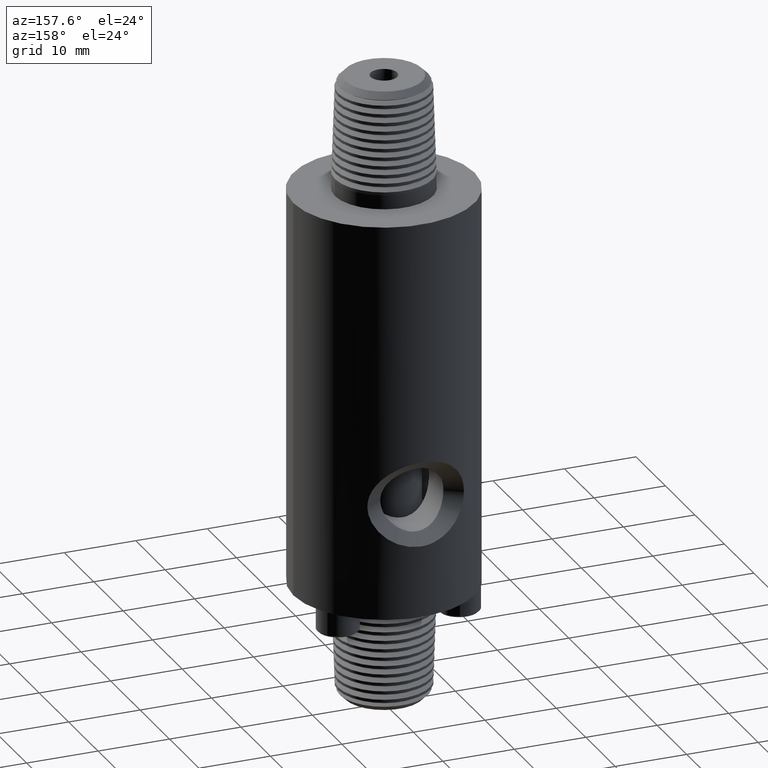
[diagram: clean part render]
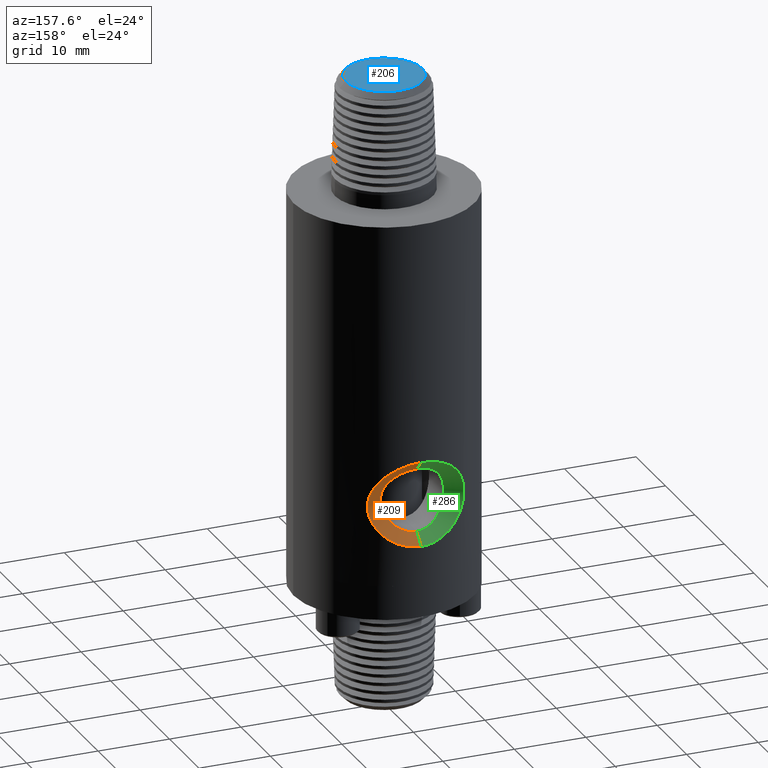
[diagram: same view with three faces highlighted in distinct colors, each labeled with its STEP entity id]
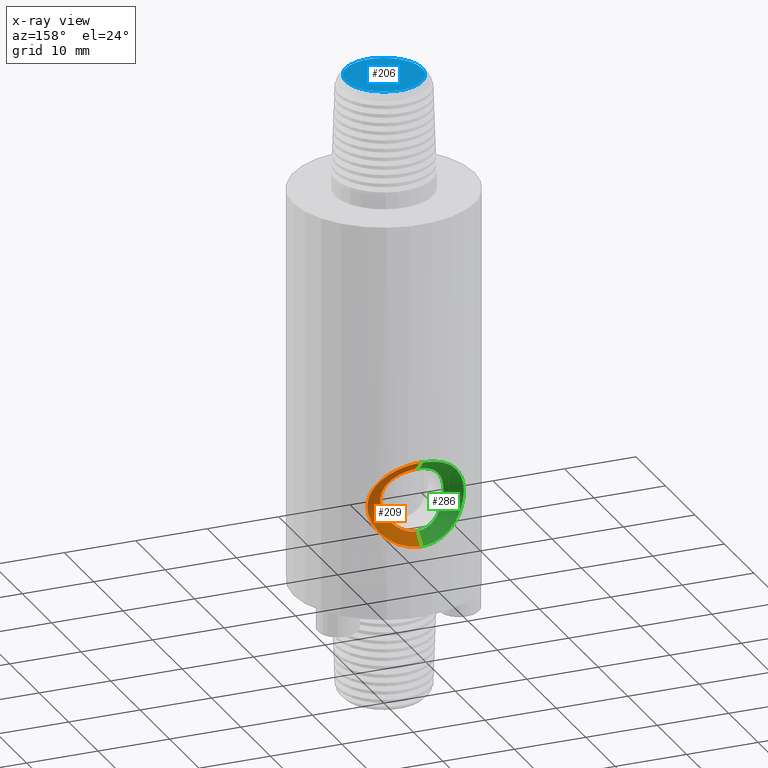
[diagram: x-ray of the same camera — body ghosted, the three highlighted faces saturated]
A machine part, auxiliary view with three faces highlighted in distinct colors.
The next image is the same camera in x-ray (body ghosted, the three faces saturated) — at least one of them is partly hidden behind the body in this view.
Their STEP definitions:

[orange] entity #209 — the highlighted face is a freeform B-spline surface patch.
#116 = EDGE_LOOP ( 'NONE', ( #3025, #3028, #2992, #3001 ) ) ;
#187 = B_SPLINE_SURFACE_WITH_KNOTS ( 'NONE', 1, 3, ( 
 ( #3581, #3437, #3426, #3492, #3462, #3568, #3544, #3441, #3424, #3459, #3553, #3464, #3577, #3572, #3686, #3560, #3498, #3458, #3576, #3448 ),
 ( #3574, #3423, #3493, #3463, #3559, #3420, #3451, #3567, #3427, #3432, #3535, #3536, #3541, #3561, #3563, #3584, #3583, #3612, #3585, #3610 ) ),
 .UNSPECIFIED., .F., .F., .F.,
 ( 2, 2 ),
 ( 4, 2, 2, 2, 2, 2, 2, 2, 2, 4 ),
 ( 0.0000000000000000000, 1.000000000000000000 ),
 ( 0.002595630559462776300, 0.007313984871202448700, 0.01203233918294212100, 0.01675069349468179300, 0.01910987065055162700, 0.02146904780642146600, 0.02618740211816113900, 0.03090575642990080900, 0.03562411074164048600, 0.04034246505338015500 ),
 .UNSPECIFIED. ) ;
#209 = ADVANCED_FACE ( 'NONE', ( #3161 ), #187, .T. ) ;
#454 = CARTESIAN_POINT ( 'NONE',  ( 7.861967865281961300E-017, 0.4999999999999998300, 0.2060000074137189300 ) ) ;
#458 = CARTESIAN_POINT ( 'NONE',  ( -1.370078323710908000E-011, 0.4399999686394475100, 0.6139999942154332800 ) ) ;
#607 = CARTESIAN_POINT ( 'NONE',  ( 1.710775810573975400E-017, 0.4400000029566741300, 0.2659999999999999000 ) ) ;
#610 = CARTESIAN_POINT ( 'NONE',  ( 7.861967865281961300E-017, 0.4999999999999998300, 0.2060000074137189300 ) ) ;
#925 = CARTESIAN_POINT ( 'NONE',  ( 1.710775810573975400E-017, 0.4400000029566741300, 0.2659999999999999000 ) ) ;
#992 = CARTESIAN_POINT ( 'NONE',  ( 0.0001188004436111807600, 0.4999999858864542200, 0.6739999692325832100 ) ) ;
#1112 = EDGE_CURVE ( 'NONE', #3566, #3569, #4060, .T. ) ;
#1925 = CARTESIAN_POINT ( 'NONE',  ( 0.2114050959143063400, 0.4531485166685652600, 0.5821689216734105000 ) ) ;
#1929 = CARTESIAN_POINT ( 'NONE',  ( 0.2164781942454169800, 0.4507380952197422300, 0.5761075924830545400 ) ) ;
#1930 = CARTESIAN_POINT ( 'NONE',  ( 0.2306227884466341100, 0.4437608429248929300, 0.5573349366310648100 ) ) ;
#1931 = CARTESIAN_POINT ( 'NONE',  ( 0.2386204605849166500, 0.4394527763509102300, 0.5440349416885111900 ) ) ;
#1932 = CARTESIAN_POINT ( 'NONE',  ( 0.2456999684463052300, 0.4354672822286724800, 0.5290697503307441000 ) ) ;
#1933 = CARTESIAN_POINT ( 'NONE',  ( 0.2461548581947587700, 0.4352103217828114400, 0.5280923525201491900 ) ) ;
#1934 = CARTESIAN_POINT ( 'NONE',  ( 0.1946402952732966800, 0.4606072482752350300, 0.5996228691202806200 ) ) ;
#1941 = CARTESIAN_POINT ( 'NONE',  ( 0.2470043734977528900, 0.4347287405637710900, 0.5262334513282230800 ) ) ;
#1945 = CARTESIAN_POINT ( 'NONE',  ( 0.02233971578531644000, 0.4995201228825381600, 0.6732243190214826100 ) ) ;
#1947 = CARTESIAN_POINT ( 'NONE',  ( 0.2482568629340760600, 0.4340162505569389900, 0.5234439015329885900 ) ) ;
#1966 = CARTESIAN_POINT ( 'NONE',  ( 0.0001188004436111807600, 0.4999999858864542200, 0.6739999692325832100 ) ) ;
#1967 = CARTESIAN_POINT ( 'NONE',  ( 0.004505466994846334300, 0.4999989436105605800, 0.6739985081220000200 ) ) ;
#1968 = CARTESIAN_POINT ( 'NONE',  ( 0.1056121140500643200, 0.4887233513263478700, 0.6547583968778309900 ) ) ;
#1969 = CARTESIAN_POINT ( 'NONE',  ( 0.1075511648794991200, 0.4882999628986279800, 0.6540101122832995300 ) ) ;
#1970 = CARTESIAN_POINT ( 'NONE',  ( 0.08707422433191705500, 0.4926477204524161700, 0.6616789287939359700 ) ) ;
#1971 = CARTESIAN_POINT ( 'NONE',  ( 0.04426237990662981700, 0.4981126632911942500, 0.6709122622113411500 ) ) ;
#1972 = CARTESIAN_POINT ( 'NONE',  ( 0.07016333050069020700, 0.4953570848158253500, 0.6662941061203223600 ) ) ;
#1973 = CARTESIAN_POINT ( 'NONE',  ( 0.1115057892226483700, 0.4874121108503286500, 0.6524361333928050400 ) ) ;
#1974 = CARTESIAN_POINT ( 'NONE',  ( 0.1630301831827427300, 0.4729070372037225700, 0.6255013312362313100 ) ) ;
#1975 = CARTESIAN_POINT ( 'NONE',  ( 0.1762337542379308600, 0.4680995521235255000, 0.6158762990975049600 ) ) ;
#1976 = CARTESIAN_POINT ( 'NONE',  ( 0.1417951927335112400, 0.4795300824077846600, 0.6381229976751864300 ) ) ;
#1977 = CARTESIAN_POINT ( 'NONE',  ( 0.1173934858623312700, 0.4860523823420368500, 0.6500184187517767900 ) ) ;
#1978 = CARTESIAN_POINT ( 'NONE',  ( 0.1231480475046630900, 0.4846130482349390600, 0.6474304651948926700 ) ) ;
#1979 = CARTESIAN_POINT ( 'NONE',  ( 0.1344789712689341600, 0.4816392828471641200, 0.6420275728599822400 ) ) ;
#1980 = CARTESIAN_POINT ( 'NONE',  ( 0.2591854956307746400, 0.4275825997747653200, 0.4925995188085480800 ) ) ;
#1981 = CARTESIAN_POINT ( 'NONE',  ( 0.2570396991447515000, 0.4288819107584712100, 0.5001054066738173100 ) ) ;
#1982 = CARTESIAN_POINT ( 'NONE',  ( 0.2531444174424368200, 0.4311846228656521800, 0.5113259022366861700 ) ) ;
#1983 = CARTESIAN_POINT ( 'NONE',  ( 0.2517331588615065500, 0.4320110218271310300, 0.5150596780518031900 ) ) ;
#1984 = CARTESIAN_POINT ( 'NONE',  ( 0.2494442946050135200, 0.4333339594950248500, 0.5206507577157198900 ) ) ;
#1989 = CARTESIAN_POINT ( 'NONE',  ( 0.2643044589655395000, 0.4244515944993062000, 0.4700051827426701700 ) ) ;
#1990 = CARTESIAN_POINT ( 'NONE',  ( 0.009045577915127344500, 0.4999378779955268600, 0.6739009650555110000 ) ) ;
#1991 = CARTESIAN_POINT ( 'NONE',  ( 0.2657976542744095400, 0.4234992611056245200, 0.4090380101796735600 ) ) ;
#1992 = CARTESIAN_POINT ( 'NONE',  ( 0.2659641289336757700, 0.4233947170362994900, 0.4548400620719913500 ) ) ;
#1993 = CARTESIAN_POINT ( 'NONE',  ( 0.2444509178103636000, 0.4361696964826490300, 0.3484838285719007400 ) ) ;
#1994 = CARTESIAN_POINT ( 'NONE',  ( 0.2589894055019924500, 0.4280022947221213100, 0.3789535431959533100 ) ) ;
#1995 = CARTESIAN_POINT ( 'NONE',  ( 0.2440502549255473300, 0.4363939890886630600, 0.3476579841534753200 ) ) ;
#1996 = CARTESIAN_POINT ( 'NONE',  ( 0.2298384649808407300, 0.4440663627461337600, 0.3223433323743609100 ) ) ;
#1997 = CARTESIAN_POINT ( 'NONE',  ( 0.2254792264010970500, 0.4463033936512282300, 0.3159173873360290300 ) ) ;
#1998 = CARTESIAN_POINT ( 'NONE',  ( 0.2358639598285274000, 0.4408779378476985800, 0.3322736872310991200 ) ) ;
#1999 = CARTESIAN_POINT ( 'NONE',  ( 0.2431934889409710400, 0.4368720265462854900, 0.3459179224650736900 ) ) ;
#2000 = CARTESIAN_POINT ( 'NONE',  ( 0.2418927751409189800, 0.4375952868128377700, 0.3433169373480725000 ) ) ;
#2001 = CARTESIAN_POINT ( 'NONE',  ( 0.2387483586160915300, 0.4393253925427123600, 0.3373117239842783300 ) ) ;
#2002 = CARTESIAN_POINT ( 'NONE',  ( 0.06072341538884151700, 0.4963740993900038200, 0.2121117072582839600 ) ) ;
#2003 = CARTESIAN_POINT ( 'NONE',  ( 0.06925462655932877700, 0.4952546720374521600, 0.2140282765530974700 ) ) ;
#2004 = CARTESIAN_POINT ( 'NONE',  ( 0.08194894190794120600, 0.4932572546743412800, 0.2174797845915647000 ) ) ;
#2005 = CARTESIAN_POINT ( 'NONE',  ( 0.08827048867817517700, 0.4921789880900768700, 0.2193497021348601300 ) ) ;
#2006 = CARTESIAN_POINT ( 'NONE',  ( 0.09455075168059991200, 0.4909833879405051100, 0.2214358649642481100 ) ) ;
#2007 = CARTESIAN_POINT ( 'NONE',  ( 0.09872811010601595400, 0.4901604759176297300, 0.2228746946918607500 ) ) ;
#2008 = CARTESIAN_POINT ( 'NONE',  ( 0.1008606662920816100, 0.4897258732266774900, 0.2236360843692356000 ) ) ;
#2009 = CARTESIAN_POINT ( 'NONE',  ( 0.1191344684589592400, 0.4858832090389054200, 0.2303817806796531800 ) ) ;
#2010 = CARTESIAN_POINT ( 'NONE',  ( 0.1343605972465631300, 0.4818386369391313700, 0.2375666766795545000 ) ) ;
#2011 = CARTESIAN_POINT ( 'NONE',  ( 0.1556642948145611800, 0.4752093621287765700, 0.2501271029320351600 ) ) ;
#2012 = CARTESIAN_POINT ( 'NONE',  ( 0.1625102488739811600, 0.4729053848976040900, 0.2546110920582999600 ) ) ;
#2013 = CARTESIAN_POINT ( 'NONE',  ( 0.1723999744174942700, 0.4693511689922651400, 0.2617828463108547400 ) ) ;
#2014 = CARTESIAN_POINT ( 'NONE',  ( 0.1756333783762008000, 0.4681500229099922500, 0.2642477261555656900 ) ) ;
#2015 = CARTESIAN_POINT ( 'NONE',  ( 0.1819747869932658300, 0.4657217027895730300, 0.2693260760327067500 ) ) ;
#2016 = CARTESIAN_POINT ( 'NONE',  ( 0.1850380538937632100, 0.4645126970737011900, 0.2719000675043291600 ) ) ;
#2017 = CARTESIAN_POINT ( 'NONE',  ( 0.2004911022886522700, 0.4582372224150807500, 0.2855362859398169500 ) ) ;
#2018 = CARTESIAN_POINT ( 'NONE',  ( 0.2113378054144225700, 0.4532623245922580700, 0.2972224268195162200 ) ) ;
#2019 = CARTESIAN_POINT ( 'NONE',  ( 0.03495677041698800500, 0.4990754883671486000, 0.2075153075663376800 ) ) ;
#2020 = CARTESIAN_POINT ( 'NONE',  ( 7.861967865281961300E-017, 0.4999999999999998300, 0.2060000074137189300 ) ) ;
#2023 = CARTESIAN_POINT ( 'NONE',  ( 0.01754773434459426200, 0.4999999999999999400, 0.2059887853616989300 ) ) ;
#2025 = CARTESIAN_POINT ( 'NONE',  ( 0.03553989809908891100, 0.4988131713446685700, 0.6720675459252539700 ) ) ;
#2070 = CARTESIAN_POINT ( 'NONE',  ( 0.01792026243979660100, 0.4996984776128277100, 0.6735138846411187200 ) ) ;
#2401 = CARTESIAN_POINT ( 'NONE',  ( 0.2005172322842165000, 0.4580704446856789200, 0.5938991345335100600 ) ) ;
#2491 = CARTESIAN_POINT ( 'NONE',  ( 0.0001188004436111807600, 0.4999999858864542200, 0.6739999692325832100 ) ) ;
#2512 = CARTESIAN_POINT ( 'NONE',  ( -1.370078323710908000E-011, 0.4399999686394475100, 0.6139999942154332800 ) ) ;
#2992 = ORIENTED_EDGE ( 'NONE', *, *, #3332, .T. ) ;
#3001 = ORIENTED_EDGE ( 'NONE', *, *, #4714, .F. ) ;
#3025 = ORIENTED_EDGE ( 'NONE', *, *, #3239, .F. ) ;
#3028 = ORIENTED_EDGE ( 'NONE', *, *, #1112, .F. ) ;
#3161 = FACE_OUTER_BOUND ( 'NONE', #116, .T. ) ;
#3239 = EDGE_CURVE ( 'NONE', #3569, #3562, #4065, .T. ) ;
#3332 = EDGE_CURVE ( 'NONE', #3566, #3557, #4068, .T. ) ;
#3420 = CARTESIAN_POINT ( 'NONE',  ( 0.1741446520897110600, 0.3725017330058080200, 0.4864800158361342100 ) ) ;
#3423 = CARTESIAN_POINT ( 'NONE',  ( 0.04669563596927973900, 0.4400263758945630000, 0.2659592936512062400 ) ) ;
#3424 = CARTESIAN_POINT ( 'NONE',  ( 0.1357001428646545100, 0.4823293647699921100, 0.6435262907337475600 ) ) ;
#3426 = CARTESIAN_POINT ( 'NONE',  ( 0.1401747630284165000, 0.4830527812779797400, 0.2322072450271270300 ) ) ;
#3427 = CARTESIAN_POINT ( 'NONE',  ( 0.08879661566143552700, 0.4244498421508479100, 0.5913400646128711400 ) ) ;
#3432 = CARTESIAN_POINT ( 'NONE',  ( 0.04672420669051694000, 0.4364706941533175200, 0.6091877917569779000 ) ) ;
#3437 = CARTESIAN_POINT ( 'NONE',  ( 0.07135976122571743900, 0.5000299687763121200, 0.2059452652551688200 ) ) ;
#3441 = CARTESIAN_POINT ( 'NONE',  ( 0.1644427963595130300, 0.4730009153213421400, 0.6263167090362628000 ) ) ;
#3448 = CARTESIAN_POINT ( 'NONE',  ( 6.829619984160658000E-017, 0.5000000000000000000, 0.2060000074137189300 ) ) ;
#3451 = CARTESIAN_POINT ( 'NONE',  ( 0.1548401656882108200, 0.3901147477528974000, 0.5310812715921682200 ) ) ;
#3458 = CARTESIAN_POINT ( 'NONE',  ( -0.1398473573537740200, 0.4831174970341236000, 0.2322128155125785000 ) ) ;
#3459 = CARTESIAN_POINT ( 'NONE',  ( 0.07140455418699694100, 0.4959894199107188800, 0.6675283990032708800 ) ) ;
#3462 = CARTESIAN_POINT ( 'NONE',  ( 0.2656871367437954000, 0.4235617079596839500, 0.3766383571199999300 ) ) ;
#3463 = CARTESIAN_POINT ( 'NONE',  ( 0.1544827475459004700, 0.3902469364809892900, 0.3485736850361753100 ) ) ;
#3464 = CARTESIAN_POINT ( 'NONE',  ( -0.07124240315802232700, 0.4999967716378026000, 0.6740192724425635400 ) ) ;
#3492 = CARTESIAN_POINT ( 'NONE',  ( 0.2360825641170654100, 0.4434624230059743800, 0.3170473773557263600 ) ) ;
#3493 = CARTESIAN_POINT ( 'NONE',  ( 0.09172462059498892600, 0.4250864487676974700, 0.2854874366360243800 ) ) ;
#3498 = CARTESIAN_POINT ( 'NONE',  ( -0.2362528780178149700, 0.4434614866221185900, 0.3169034730108605300 ) ) ;
#3535 = CARTESIAN_POINT ( 'NONE',  ( 0.02342586886537239400, 0.4400014046740375900, 0.6139928056097969700 ) ) ;
#3536 = CARTESIAN_POINT ( 'NONE',  ( -0.04661852331248443600, 0.4399971622621864400, 0.6140143366836937600 ) ) ;
#3541 = CARTESIAN_POINT ( 'NONE',  ( -0.09181128359678224200, 0.4250395132065205000, 0.5944351610831503100 ) ) ;
#3544 = CARTESIAN_POINT ( 'NONE',  ( 0.2366287520654982400, 0.4433122180313112700, 0.5624886192655407200 ) ) ;
#3553 = CARTESIAN_POINT ( 'NONE',  ( 0.03579940224442796500, 0.5000015930107801800, 0.6739903176275930900 ) ) ;
#3557 = VERTEX_POINT ( 'NONE', #925 ) ;
#3559 = CARTESIAN_POINT ( 'NONE',  ( 0.1738547677333648100, 0.3727343065065227800, 0.3928845293640070300 ) ) ;
#3560 = CARTESIAN_POINT ( 'NONE',  ( -0.2659736353547439400, 0.4233858044320503700, 0.3770978124068214400 ) ) ;
#3561 = CARTESIAN_POINT ( 'NONE',  ( -0.1546483153048910400, 0.3901560381010642500, 0.5312509518927897000 ) ) ;
#3562 = VERTEX_POINT ( 'NONE', #458 ) ;
#3563 = CARTESIAN_POINT ( 'NONE',  ( -0.1739577376302702500, 0.3726560564199020700, 0.4868920655997466800 ) ) ;
#3566 = VERTEX_POINT ( 'NONE', #454 ) ;
#3567 = CARTESIAN_POINT ( 'NONE',  ( 0.1076046175805081400, 0.4162408116478582000, 0.5785432044310853100 ) ) ;
#3568 = CARTESIAN_POINT ( 'NONE',  ( 0.2661301380173786700, 0.4232974221591317400, 0.5025070657624375300 ) ) ;
#3569 = VERTEX_POINT ( 'NONE', #992 ) ;
#3572 = CARTESIAN_POINT ( 'NONE',  ( -0.2363355870844230700, 0.4433591293320577900, 0.5627167894241885700 ) ) ;
#3574 = CARTESIAN_POINT ( 'NONE',  ( 7.256471233170699500E-017, 0.4400000029566741300, 0.2659999999999998500 ) ) ;
#3576 = CARTESIAN_POINT ( 'NONE',  ( -0.07135976122571723000, 0.4999700312236877200, 0.2060547495722690500 ) ) ;
#3577 = CARTESIAN_POINT ( 'NONE',  ( -0.1403072024157928900, 0.4829994454744237500, 0.6476886623857088800 ) ) ;
#3581 = CARTESIAN_POINT ( 'NONE',  ( 6.829619984160658000E-017, 0.5000000000000000000, 0.2060000074137189300 ) ) ;
#3583 = CARTESIAN_POINT ( 'NONE',  ( -0.1545941867640596700, 0.3902461164490789200, 0.3484666720549879900 ) ) ;
#3584 = CARTESIAN_POINT ( 'NONE',  ( -0.1740422422815803600, 0.3725795100770971100, 0.3932261771656007100 ) ) ;
#3585 = CARTESIAN_POINT ( 'NONE',  ( -0.04669563596927955900, 0.4399736300187852600, 0.2660407063487935100 ) ) ;
#3610 = CARTESIAN_POINT ( 'NONE',  ( 7.256471233170699500E-017, 0.4400000029566741300, 0.2659999999999998500 ) ) ;
#3612 = CARTESIAN_POINT ( 'NONE',  ( -0.09151038696083752000, 0.4251433946475985400, 0.2854915859749011500 ) ) ;
#3686 = CARTESIAN_POINT ( 'NONE',  ( -0.2658444953414371700, 0.4234727881693466900, 0.5030612037208489500 ) ) ;
#4060 = B_SPLINE_CURVE_WITH_KNOTS ( 'NONE', 3,
 ( #2020, #2023, #2019, #2002, #2003, #2004, #2005, #2006, #2007, #2008, #2009, #2010, #2011, #2012, #2013, #2014, #2015, #2016, #2017, #2018, #1997, #1996, #1998, #2001, #2000, #1999, #1995, #1993, #1994, #1991, #1992, #1989, #1980, #1981, #1982, #1983, #1984, #1947, #1941, #1933, #1932, #1931, #1930, #1929, #1925, #2401, #1934, #1975, #1974, #1976, #1979, #1978, #1977, #1973, #1969, #1968, #1970, #1972, #1971, #2025, #1945, #2070, #1990, #1967, #1966 ),
 .UNSPECIFIED., .F., .F.,
 ( 4, 2, 2, 1, 2, 2, 2, 2, 2, 2, 2, 2, 1, 1, 2, 2, 2, 2, 2, 2, 1, 2, 2, 2, 2, 2, 2, 2, 1, 2, 2, 2, 2, 2, 4 ),
 ( 0.0000000000000000000, 0.03124999999999974300, 0.04687499999999961100, 0.05468749999999956300, 0.05859374999999952800, 0.06249999999999948700, 0.09374999999999912600, 0.1093749999999989300, 0.1171874999999988600, 0.1249999999999987800, 0.1562499999999986700, 0.1718749999999986100, 0.1796874999999985800, 0.1835937499999985600, 0.1855468749999985300, 0.1874999999999985000, 0.2499999999999968900, 0.2812499999999960600, 0.2968749999999956100, 0.3046874999999953900, 0.3085937499999952800, 0.3105468749999953400, 0.3124999999999953900, 0.3437499999999957300, 0.3593749999999959500, 0.3749999999999961700, 0.4062499999999966700, 0.4218749999999969500, 0.4296874999999970000, 0.4335937499999971100, 0.4374999999999971700, 0.4687499999999986100, 0.4843749999999992800, 0.4921874999999996100, 0.5000000000000000000 ),
 .UNSPECIFIED. ) ;
#4065 = B_SPLINE_CURVE_WITH_KNOTS ( 'NONE', 1,
 ( #2491, #2512 ),
 .UNSPECIFIED., .F., .F.,
 ( 2, 2 ),
 ( 0.0000000000000000000, 1.000000000000000000 ),
 .UNSPECIFIED. ) ;
#4068 = B_SPLINE_CURVE_WITH_KNOTS ( 'NONE', 1,
 ( #610, #607 ),
 .UNSPECIFIED., .F., .F.,
 ( 2, 2 ),
 ( 0.0000000000000000000, 1.000000000000000000 ),
 .UNSPECIFIED. ) ;
#4070 = B_SPLINE_CURVE_WITH_KNOTS ( 'NONE', 3,
 ( #5406, #5385, #5386, #5387, #5388, #5389, #5390, #5391, #5392, #5393, #5394, #5377, #5378, #5379, #5380, #5381, #5382, #5383, #5384, #5376, #5309, #5310, #5311, #5312, #5313, #5314, #5315, #5316, #5317, #5318, #5319, #5320, #5321, #5322, #5323, #5324, #5325, #5326, #5327, #5328, #5329, #5330, #5331, #5332, #5333, #5334, #5335, #5336, #5337, #5338, #5339, #5340, #5341, #5342, #5343, #5344, #5345, #5346, #5347, #5348, #5349, #5350, #5351, #5352, #5353, #5354, #5355, #5356, #5357, #5358, #5359, #5360, #5361, #5362, #5363, #5364, #5365, #5366, #5367, #5368, #5369, #5370 ),
 .UNSPECIFIED., .F., .F.,
 ( 4, 2, 1, 2, 2, 2, 2, 1, 1, 1, 2, 2, 2, 2, 1, 2, 2, 2, 2, 2, 1, 1, 1, 1, 2, 2, 2, 2, 2, 1, 1, 1, 1, 2, 2, 2, 2, 1, 1, 1, 2, 2, 2, 2, 1, 1, 1, 1, 2, 2, 4 ),
 ( 0.4999240062174980500, 0.5038308499189255700, 0.5077376936203531500, 0.5155513810232083000, 0.5311787558289184900, 0.5624335054403388800, 0.5634102163656957700, 0.5643869272910526600, 0.5663403491417663400, 0.5702471928431938100, 0.5780608802460485100, 0.5936882550517579300, 0.6249430046631765400, 0.6268964265138902100, 0.6288498483646038900, 0.6327566920660312500, 0.6405703794688861800, 0.6561977542745958100, 0.6874525038860153100, 0.6879408593486935300, 0.6884292148113716500, 0.6894059257367279900, 0.6913593475874406600, 0.6952661912888658000, 0.7030798786917159500, 0.7187072534974160400, 0.7499620031088161100, 0.8124715023316166900, 0.8129598577942948000, 0.8134482132569729200, 0.8144249241823290400, 0.8163783460330411600, 0.8202851897344656300, 0.8280988771373148900, 0.8437262519430133200, 0.8749810015544100500, 0.8759577124797661700, 0.8769344234051224000, 0.8788878452558346300, 0.8827946889572593200, 0.8906083763601084800, 0.9062357511658065700, 0.9374905007772028600, 0.9379788562398809800, 0.9384672117025590900, 0.9394439226279153200, 0.9413973444786277700, 0.9453041881800525700, 0.9531178755829021700, 0.9687452503886013800, 1.000000000000000000 ),
 .UNSPECIFIED. ) ;
#4714 = EDGE_CURVE ( 'NONE', #3562, #3557, #4070, .T. ) ;
#5309 = CARTESIAN_POINT ( 'NONE',  ( 0.1137245425012067100, 0.4128532470144626900, 0.5723887842016268700 ) ) ;
#5310 = CARTESIAN_POINT ( 'NONE',  ( 0.1238957383699918500, 0.4072303227312673600, 0.5621743221997302900 ) ) ;
#5311 = CARTESIAN_POINT ( 'NONE',  ( 0.1245952810315659000, 0.4068412307382131000, 0.5614613339928062900 ) ) ;
#5312 = CARTESIAN_POINT ( 'NONE',  ( 0.1258676674566688900, 0.4061291145218473600, 0.5601422906376615200 ) ) ;
#5313 = CARTESIAN_POINT ( 'NONE',  ( 0.1277458668819400300, 0.4050714898766172900, 0.5581639380904572800 ) ) ;
#5314 = CARTESIAN_POINT ( 'NONE',  ( 0.1295343932535982000, 0.4040455142693446500, 0.5561890507386321200 ) ) ;
#5315 = CARTESIAN_POINT ( 'NONE',  ( 0.1329959870695134000, 0.4020357617720746200, 0.5522509938125033100 ) ) ;
#5316 = CARTESIAN_POINT ( 'NONE',  ( 0.1351497294368508900, 0.4007521917302623300, 0.5496413963737266700 ) ) ;
#5317 = CARTESIAN_POINT ( 'NONE',  ( 0.1411837769140656700, 0.3970702764739282900, 0.5419111465876913500 ) ) ;
#5318 = CARTESIAN_POINT ( 'NONE',  ( 0.1446368193651123300, 0.3948407261285099600, 0.5368911744689419700 ) ) ;
#5319 = CARTESIAN_POINT ( 'NONE',  ( 0.1535799535813446000, 0.3888272545686669600, 0.5225592798058481500 ) ) ;
#5320 = CARTESIAN_POINT ( 'NONE',  ( 0.1576655202839713200, 0.3857185128306546700, 0.5139992736906902100 ) ) ;
#5321 = CARTESIAN_POINT ( 'NONE',  ( 0.1606495917989792000, 0.3834755025439610100, 0.5068410269996398400 ) ) ;
#5322 = CARTESIAN_POINT ( 'NONE',  ( 0.1607465454483043300, 0.3834025989865200200, 0.5066077098226018400 ) ) ;
#5323 = CARTESIAN_POINT ( 'NONE',  ( 0.1608970973101764300, 0.3832892647176517900, 0.5062432106599257200 ) ) ;
#5324 = CARTESIAN_POINT ( 'NONE',  ( 0.1611218373132790600, 0.3831199367708467700, 0.5056964615275700800 ) ) ;
#5325 = CARTESIAN_POINT ( 'NONE',  ( 0.1616386344235890000, 0.3827295524237810900, 0.5044207441757979600 ) ) ;
#5326 = CARTESIAN_POINT ( 'NONE',  ( 0.1626419915323914200, 0.3819676405115673400, 0.5018696964653846000 ) ) ;
#5327 = CARTESIAN_POINT ( 'NONE',  ( 0.1645289603988282800, 0.3805192438148102800, 0.4967712309231975800 ) ) ;
#5328 = CARTESIAN_POINT ( 'NONE',  ( 0.1659452979641097300, 0.3794070645793104500, 0.4924143571652101500 ) ) ;
#5329 = CARTESIAN_POINT ( 'NONE',  ( 0.1685218971186476000, 0.3773551109715569400, 0.4837355370984451900 ) ) ;
#5330 = CARTESIAN_POINT ( 'NONE',  ( 0.1698980154361211200, 0.3762170150507165900, 0.4779967436239562200 ) ) ;
#5331 = CARTESIAN_POINT ( 'NONE',  ( 0.1731058537403598600, 0.3734923467411813100, 0.4610408198853944200 ) ) ;
#5332 = CARTESIAN_POINT ( 'NONE',  ( 0.1740164588553157800, 0.3725953938054719100, 0.4500915577244040100 ) ) ;
#5333 = CARTESIAN_POINT ( 'NONE',  ( 0.1739664068918150000, 0.3726630128102864100, 0.4189771735357354400 ) ) ;
#5334 = CARTESIAN_POINT ( 'NONE',  ( 0.1701844390666348000, 0.3763382746260216000, 0.3958531895516618200 ) ) ;
#5335 = CARTESIAN_POINT ( 'NONE',  ( 0.1603430180428054900, 0.3837006341625468500, 0.3724266667685590100 ) ) ;
#5336 = CARTESIAN_POINT ( 'NONE',  ( 0.1603206889288226500, 0.3837173361175212900, 0.3723738855219204700 ) ) ;
#5337 = CARTESIAN_POINT ( 'NONE',  ( 0.1602264243904158700, 0.3837878661261161000, 0.3721508468359625000 ) ) ;
#5338 = CARTESIAN_POINT ( 'NONE',  ( 0.1600841755722152400, 0.3838943101312111100, 0.3718152466552034900 ) ) ;
#5339 = CARTESIAN_POINT ( 'NONE',  ( 0.1597462474638001700, 0.3841472224218517900, 0.3710249118349035500 ) ) ;
#5340 = CARTESIAN_POINT ( 'NONE',  ( 0.1590459300685532800, 0.3846712187848121400, 0.3694153949431515100 ) ) ;
#5341 = CARTESIAN_POINT ( 'NONE',  ( 0.1575441670003646400, 0.3857918986374441700, 0.3660828420270314500 ) ) ;
#5342 = CARTESIAN_POINT ( 'NONE',  ( 0.1560721066972280400, 0.3868770878712069500, 0.3630384052952762600 ) ) ;
#5343 = CARTESIAN_POINT ( 'NONE',  ( 0.1528491159396627700, 0.3892136083426457900, 0.3567203149016290300 ) ) ;
#5344 = CARTESIAN_POINT ( 'NONE',  ( 0.1503289405002473400, 0.3909928113288228500, 0.3522008887000538400 ) ) ;
#5345 = CARTESIAN_POINT ( 'NONE',  ( 0.1413768207014886900, 0.3969949883030082200, 0.3379485827815800200 ) ) ;
#5346 = CARTESIAN_POINT ( 'NONE',  ( 0.1335433688785220800, 0.4018825303066701500, 0.3274848709534121700 ) ) ;
#5347 = CARTESIAN_POINT ( 'NONE',  ( 0.1227970435766366200, 0.4078365890194707900, 0.3167234877312235500 ) ) ;
#5348 = CARTESIAN_POINT ( 'NONE',  ( 0.1225428601202389600, 0.4079765815662184700, 0.3164710040165577600 ) ) ;
#5349 = CARTESIAN_POINT ( 'NONE',  ( 0.1219640438123962600, 0.4082938516395807100, 0.3158994865761884900 ) ) ;
#5350 = CARTESIAN_POINT ( 'NONE',  ( 0.1210946906977641400, 0.4087678056713306400, 0.3150471079523171600 ) ) ;
#5351 = CARTESIAN_POINT ( 'NONE',  ( 0.1190587198987568700, 0.4098600408640286600, 0.3130923766645932200 ) ) ;
#5352 = CARTESIAN_POINT ( 'NONE',  ( 0.1149601676156877000, 0.4119898810572165700, 0.3093184337212424000 ) ) ;
#5353 = CARTESIAN_POINT ( 'NONE',  ( 0.1114126769687740100, 0.4137218066075918400, 0.3063120304348794800 ) ) ;
#5354 = CARTESIAN_POINT ( 'NONE',  ( 0.1042994179373047900, 0.4170607886975809500, 0.3005917412736558400 ) ) ;
#5355 = CARTESIAN_POINT ( 'NONE',  ( 0.09953365331690540400, 0.4191202847432241000, 0.2971686087367992300 ) ) ;
#5356 = CARTESIAN_POINT ( 'NONE',  ( 0.08535825725678361500, 0.4247992968371067700, 0.2879572895228098000 ) ) ;
#5357 = CARTESIAN_POINT ( 'NONE',  ( 0.07608150461552566600, 0.4279193368422988800, 0.2832285947687579500 ) ) ;
#5358 = CARTESIAN_POINT ( 'NONE',  ( 0.06721385176116494200, 0.4304117536642788600, 0.2795060125012919200 ) ) ;
#5359 = CARTESIAN_POINT ( 'NONE',  ( 0.06699526492561007400, 0.4304729904961142600, 0.2794145960319363000 ) ) ;
#5360 = CARTESIAN_POINT ( 'NONE',  ( 0.06663770750494402200, 0.4305726762623181000, 0.2792658921431907000 ) ) ;
#5361 = CARTESIAN_POINT ( 'NONE',  ( 0.06610129629897466800, 0.4307216151063731300, 0.2790438551640499500 ) ) ;
#5362 = CARTESIAN_POINT ( 'NONE',  ( 0.06484917415438058700, 0.4310650104390820200, 0.2785328886690272000 ) ) ;
#5363 = CARTESIAN_POINT ( 'NONE',  ( 0.06234318052096179300, 0.4317352865574875500, 0.2775393360041860700 ) ) ;
#5364 = CARTESIAN_POINT ( 'NONE',  ( 0.05732604892508704600, 0.4330097806062492300, 0.2756649418689973700 ) ) ;
#5365 = CARTESIAN_POINT ( 'NONE',  ( 0.05302310122580981100, 0.4339889614685320500, 0.2742486803703430000 ) ) ;
#5366 = CARTESIAN_POINT ( 'NONE',  ( 0.04442949763347989900, 0.4357963330489847400, 0.2716616008442002700 ) ) ;
#5367 = CARTESIAN_POINT ( 'NONE',  ( 0.03871720140305528300, 0.4367999272438028400, 0.2702643415764502400 ) ) ;
#5368 = CARTESIAN_POINT ( 'NONE',  ( 0.02174228301471661400, 0.4392067492518063100, 0.2669793803353171500 ) ) ;
#5369 = CARTESIAN_POINT ( 'NONE',  ( 0.01064749388631301900, 0.4400060164885408700, 0.2660000000000000700 ) ) ;
#5370 = CARTESIAN_POINT ( 'NONE',  ( 1.710775810573975400E-017, 0.4400000029566741300, 0.2659999999999999000 ) ) ;
#5376 = CARTESIAN_POINT ( 'NONE',  ( 0.1038705948451070200, 0.4174088430170606600, 0.5800478537155240300 ) ) ;
#5377 = CARTESIAN_POINT ( 'NONE',  ( 0.06822269453643163600, 0.4303279132774340300, 0.6000679326239569700 ) ) ;
#5378 = CARTESIAN_POINT ( 'NONE',  ( 0.06873980668892422400, 0.4301784178137805200, 0.5998465454136814300 ) ) ;
#5379 = CARTESIAN_POINT ( 'NONE',  ( 0.06951779337193980700, 0.4299520167041540100, 0.5995112465824548000 ) ) ;
#5380 = CARTESIAN_POINT ( 'NONE',  ( 0.07134912272979714000, 0.4294086420493338200, 0.5987060653832871900 ) ) ;
#5381 = CARTESIAN_POINT ( 'NONE',  ( 0.07507421764947597200, 0.4282614711435934800, 0.5970020954827016700 ) ) ;
#5382 = CARTESIAN_POINT ( 'NONE',  ( 0.07836829181146001700, 0.4271746019167880800, 0.5953730049698196000 ) ) ;
#5383 = CARTESIAN_POINT ( 'NONE',  ( 0.08507319885758864200, 0.4248627569578065600, 0.5918683317065413000 ) ) ;
#5384 = CARTESIAN_POINT ( 'NONE',  ( 0.08969983273076585800, 0.4231373849779909700, 0.5892031013719988300 ) ) ;
#5385 = CARTESIAN_POINT ( 'NONE',  ( 0.001332308958931330800, 0.4400006428947834700, 0.6140000000001013500 ) ) ;
#5386 = CARTESIAN_POINT ( 'NONE',  ( 0.002770170773605274600, 0.4399888871573004500, 0.6139835207792087000 ) ) ;
#5387 = CARTESIAN_POINT ( 'NONE',  ( 0.005554583857555403500, 0.4399404967080812700, 0.6139168937941730200 ) ) ;
#5388 = CARTESIAN_POINT ( 'NONE',  ( 0.009741972610237457600, 0.4398305984093385800, 0.6137665282562480000 ) ) ;
#5389 = CARTESIAN_POINT ( 'NONE',  ( 0.01395798104636917500, 0.4396087622358549300, 0.6134623915833344900 ) ) ;
#5390 = CARTESIAN_POINT ( 'NONE',  ( 0.02241771524951946500, 0.4390158393892323300, 0.6126428456606144400 ) ) ;
#5391 = CARTESIAN_POINT ( 'NONE',  ( 0.02809470386677821000, 0.4384215568252775000, 0.6118146025899612300 ) ) ;
#5392 = CARTESIAN_POINT ( 'NONE',  ( 0.04514593045492734000, 0.4360417071347929600, 0.6084402717802123200 ) ) ;
#5393 = CARTESIAN_POINT ( 'NONE',  ( 0.05654341234367550600, 0.4336591380096440100, 0.6050006842684608800 ) ) ;
#5394 = CARTESIAN_POINT ( 'NONE',  ( 0.06803758433024302600, 0.4303812358512318400, 0.6001469015339832000 ) ) ;
#5406 = CARTESIAN_POINT ( 'NONE',  ( -1.370078323710908000E-011, 0.4399999686394475100, 0.6139999942154332800 ) ) ;

[blue] entity #206 — the highlighted planar face has unit normal (0, 0, 1).
#111 = FACE_OUTER_BOUND ( 'NONE', #148, .T. ) ;
#132 = FACE_BOUND ( 'NONE', #168, .T. ) ;
#148 = EDGE_LOOP ( 'NONE', ( #392, #408 ) ) ;
#168 = EDGE_LOOP ( 'NONE', ( #401, #428 ) ) ;
#206 = ADVANCED_FACE ( 'NONE', ( #111, #132 ), #3580, .T. ) ;
#392 = ORIENTED_EDGE ( 'NONE', *, *, #4717, .T. ) ;
#401 = ORIENTED_EDGE ( 'NONE', *, *, #1107, .T. ) ;
#408 = ORIENTED_EDGE ( 'NONE', *, *, #3325, .T. ) ;
#428 = ORIENTED_EDGE ( 'NONE', *, *, #4699, .T. ) ;
#501 = DIRECTION ( 'NONE',  ( 0.0000000000000000000, 0.0000000000000000000, 1.000000000000000000 ) ) ;
#534 = DIRECTION ( 'NONE',  ( 1.000000000000000000, 0.0000000000000000000, 0.0000000000000000000 ) ) ;
#606 = CARTESIAN_POINT ( 'NONE',  ( 0.0000000000000000000, 0.0000000000000000000, 2.629999999999999900 ) ) ;
#817 = CARTESIAN_POINT ( 'NONE',  ( 0.2107272273175039000, 2.782593476823310900E-017, 2.629999999999999900 ) ) ;
#868 = CARTESIAN_POINT ( 'NONE',  ( -0.2107272273175039000, 0.0000000000000000000, 2.629999999999999900 ) ) ;
#883 = CARTESIAN_POINT ( 'NONE',  ( -0.07349999999999998200, 0.0000000000000000000, 2.629999999999999900 ) ) ;
#1047 = CARTESIAN_POINT ( 'NONE',  ( 0.07349999999999998200, 9.001153973733043100E-018, 2.629999999999999900 ) ) ;
#1107 = EDGE_CURVE ( 'NONE', #3710, #3711, #4289, .T. ) ;
#1416 = AXIS2_PLACEMENT_3D ( 'NONE', #3579, #3425, #3573 ) ;
#1587 = AXIS2_PLACEMENT_3D ( 'NONE', #2031, #2032, #2034 ) ;
#1757 = AXIS2_PLACEMENT_3D ( 'NONE', #606, #501, #534 ) ;
#1806 = AXIS2_PLACEMENT_3D ( 'NONE', #5308, #5243, #5244 ) ;
#1815 = AXIS2_PLACEMENT_3D ( 'NONE', #5264, #5265, #5266 ) ;
#2031 = CARTESIAN_POINT ( 'NONE',  ( 0.0000000000000000000, 0.0000000000000000000, 2.629999999999999900 ) ) ;
#2032 = DIRECTION ( 'NONE',  ( -0.0000000000000000000, -0.0000000000000000000, -1.000000000000000000 ) ) ;
#2034 = DIRECTION ( 'NONE',  ( -1.000000000000000000, 0.0000000000000000000, 0.0000000000000000000 ) ) ;
#3325 = EDGE_CURVE ( 'NONE', #3641, #3715, #5018, .T. ) ;
#3425 = DIRECTION ( 'NONE',  ( 0.0000000000000000000, 0.0000000000000000000, 1.000000000000000000 ) ) ;
#3573 = DIRECTION ( 'NONE',  ( 1.000000000000000000, 0.0000000000000000000, -0.0000000000000000000 ) ) ;
#3579 = CARTESIAN_POINT ( 'NONE',  ( 0.0000000000000000000, 0.2507272273175040200, 2.629999999999999900 ) ) ;
#3580 = PLANE ( 'NONE',  #1416 ) ;
#3641 = VERTEX_POINT ( 'NONE', #817 ) ;
#3710 = VERTEX_POINT ( 'NONE', #883 ) ;
#3711 = VERTEX_POINT ( 'NONE', #1047 ) ;
#3715 = VERTEX_POINT ( 'NONE', #868 ) ;
#4289 = CIRCLE ( 'NONE', #1587, 0.07349999999999998200 ) ;
#4699 = EDGE_CURVE ( 'NONE', #3711, #3710, #5147, .T. ) ;
#4717 = EDGE_CURVE ( 'NONE', #3715, #3641, #5172, .T. ) ;
#5018 = CIRCLE ( 'NONE', #1757, 0.2107272273175039000 ) ;
#5147 = CIRCLE ( 'NONE', #1806, 0.07349999999999998200 ) ;
#5172 = CIRCLE ( 'NONE', #1815, 0.2107272273175039000 ) ;
#5243 = DIRECTION ( 'NONE',  ( -0.0000000000000000000, -0.0000000000000000000, -1.000000000000000000 ) ) ;
#5244 = DIRECTION ( 'NONE',  ( -1.000000000000000000, 0.0000000000000000000, 0.0000000000000000000 ) ) ;
#5264 = CARTESIAN_POINT ( 'NONE',  ( 0.0000000000000000000, 0.0000000000000000000, 2.629999999999999900 ) ) ;
#5265 = DIRECTION ( 'NONE',  ( 0.0000000000000000000, 0.0000000000000000000, 1.000000000000000000 ) ) ;
#5266 = DIRECTION ( 'NONE',  ( 1.000000000000000000, 0.0000000000000000000, 0.0000000000000000000 ) ) ;
#5308 = CARTESIAN_POINT ( 'NONE',  ( 0.0000000000000000000, 0.0000000000000000000, 2.629999999999999900 ) ) ;

[green] entity #286 — the highlighted face is a freeform B-spline surface patch.
#188 = B_SPLINE_SURFACE_WITH_KNOTS ( 'NONE', 1, 3, ( 
 ( #5655, #5756, #5709, #5743, #5734, #5759, #5706, #5650, #5727, #5728, #5644, #5700, #5730, #5750, #5710, #5731, #5723, #5752, #5721, #5747 ),
 ( #5718, #5699, #5751, #5695, #5749, #5707, #5735, #5737, #5724, #5714, #5720, #5757, #5744, #5736, #5702, #5717, #5713, #5692, #5701, #5693 ) ),
 .UNSPECIFIED., .F., .F., .F.,
 ( 2, 2 ),
 ( 4, 2, 2, 2, 2, 2, 2, 2, 2, 4 ),
 ( 0.0000000000000000000, 1.000000000000000000 ),
 ( 0.002595630559462776300, 0.007313984871202448700, 0.01203233918294212100, 0.01675069349468179300, 0.01910987065055162700, 0.02146904780642146600, 0.02618740211816113900, 0.03090575642990080900, 0.03562411074164048600, 0.04034246505338015500 ),
 .UNSPECIFIED. ) ;
#286 = ADVANCED_FACE ( 'NONE', ( #4187 ), #188, .T. ) ;
#449 = CARTESIAN_POINT ( 'NONE',  ( -0.1192233354613773900, 0.4097725317892506600, 0.5667529940179646400 ) ) ;
#451 = CARTESIAN_POINT ( 'NONE',  ( -0.06918926493287409800, 0.4298376447668934000, 0.2803457690344182100 ) ) ;
#453 = CARTESIAN_POINT ( 'NONE',  ( -0.08550515376963843700, 0.4247267518014455300, 0.5919619300901065600 ) ) ;
#454 = CARTESIAN_POINT ( 'NONE',  ( 7.861967865281961300E-017, 0.4999999999999998300, 0.2060000074137189300 ) ) ;
#458 = CARTESIAN_POINT ( 'NONE',  ( -1.370078323710908000E-011, 0.4399999686394475100, 0.6139999942154332800 ) ) ;
#469 = CARTESIAN_POINT ( 'NONE',  ( -1.370078323710908000E-011, 0.4399999686394475100, 0.6139999942154332800 ) ) ;
#470 = CARTESIAN_POINT ( 'NONE',  ( -0.1409102660104746000, 0.3972184860307652100, 0.3377121598018856800 ) ) ;
#473 = CARTESIAN_POINT ( 'NONE',  ( -0.1151284040719634700, 0.4119027959963049700, 0.5705334311968164300 ) ) ;
#474 = CARTESIAN_POINT ( 'NONE',  ( -0.1243302586025947200, 0.4069845672900656000, 0.3182699790526595200 ) ) ;
#475 = CARTESIAN_POINT ( 'NONE',  ( -0.1229614800323738100, 0.4077466101221475200, 0.5631124971324461500 ) ) ;
#476 = CARTESIAN_POINT ( 'NONE',  ( -0.09001753789646878300, 0.4229260812195147500, 0.2909880326075047800 ) ) ;
#477 = CARTESIAN_POINT ( 'NONE',  ( -0.1236855009617035400, 0.4073436449906277000, 0.3176149189815994900 ) ) ;
#478 = CARTESIAN_POINT ( 'NONE',  ( -0.1702449288043482400, 0.3762773425391454100, 0.4839086599971593200 ) ) ;
#479 = CARTESIAN_POINT ( 'NONE',  ( -0.1684413813463178100, 0.3774190728053427000, 0.3959539669757112800 ) ) ;
#481 = CARTESIAN_POINT ( 'NONE',  ( -0.1221253042096154300, 0.4082062546012939500, 0.5639418230059153300 ) ) ;
#482 = CARTESIAN_POINT ( 'NONE',  ( -0.08533247953659893500, 0.4246499342807583100, 0.2882723999347355200 ) ) ;
#483 = CARTESIAN_POINT ( 'NONE',  ( -0.1604401621269834200, 0.3836217910117019600, 0.5073423577897362400 ) ) ;
#488 = CARTESIAN_POINT ( 'NONE',  ( -0.1730723520550267700, 0.3735257860887409900, 0.4186758614749878600 ) ) ;
#490 = CARTESIAN_POINT ( 'NONE',  ( -0.1327199305202236800, 0.4021831233672250000, 0.3274231601660922400 ) ) ;
#491 = CARTESIAN_POINT ( 'NONE',  ( -0.1443720427434779500, 0.3949870763929928500, 0.3427147683483226000 ) ) ;
#492 = CARTESIAN_POINT ( 'NONE',  ( -0.1233238115993521300, 0.4075444415430278200, 0.3172506464855543400 ) ) ;
#493 = CARTESIAN_POINT ( 'NONE',  ( -0.1115823179497166900, 0.4136355334814791300, 0.5735464784023204300 ) ) ;
#495 = CARTESIAN_POINT ( 'NONE',  ( -0.1041902413009896200, 0.4172563585512856800, 0.3001883844663160700 ) ) ;
#504 = CARTESIAN_POINT ( 'NONE',  ( -0.05739903518036823500, 0.4329612012133711700, 0.6043097664773604500 ) ) ;
#505 = CARTESIAN_POINT ( 'NONE',  ( -0.06242482992074530800, 0.4316835337234860000, 0.6024293577483248500 ) ) ;
#506 = CARTESIAN_POINT ( 'NONE',  ( -0.07844135599084618700, 0.4269866321303753000, 0.2846626965546441600 ) ) ;
#507 = CARTESIAN_POINT ( 'NONE',  ( -0.1138080555516397400, 0.4128123254598030600, 0.3077350643860510300 ) ) ;
#508 = CARTESIAN_POINT ( 'NONE',  ( -0.06493521548294553500, 0.4310117181723948100, 0.6014325411985904600 ) ) ;
#509 = CARTESIAN_POINT ( 'NONE',  ( -0.06601035668208184200, 0.4307167296920378900, 0.6009931148726317400 ) ) ;
#510 = CARTESIAN_POINT ( 'NONE',  ( -0.06672693087167107200, 0.4305185001429357400, 0.6006974390652674000 ) ) ;
#512 = CARTESIAN_POINT ( 'NONE',  ( -0.1292622725328229100, 0.4041912259694976400, 0.3235083861141893100 ) ) ;
#513 = CARTESIAN_POINT ( 'NONE',  ( -0.06781673083639194700, 0.4302289430518499400, 0.2797598268557974200 ) ) ;
#515 = CARTESIAN_POINT ( 'NONE',  ( -0.1603205021906843900, 0.3837114239598856100, 0.5076265571320882600 ) ) ;
#516 = CARTESIAN_POINT ( 'NONE',  ( -0.1604144383054392500, 0.3836410526334158000, 0.5074034319257059200 ) ) ;
#517 = CARTESIAN_POINT ( 'NONE',  ( -0.1739974633136270300, 0.3726282756231718000, 0.4607870371804202400 ) ) ;
#519 = CARTESIAN_POINT ( 'NONE',  ( -0.1561793308416128400, 0.3867952644192687600, 0.5167437693514213000 ) ) ;
#520 = CARTESIAN_POINT ( 'NONE',  ( -0.1576470719254651500, 0.3857116006861393000, 0.5136974211390115100 ) ) ;
#521 = CARTESIAN_POINT ( 'NONE',  ( -0.1415175983328500200, 0.3969054024747630200, 0.5418562754252190800 ) ) ;
#522 = CARTESIAN_POINT ( 'NONE',  ( -0.1529651676125986800, 0.3891289973223899800, 0.5230663323064285200 ) ) ;
#523 = CARTESIAN_POINT ( 'NONE',  ( -0.1591440130407518700, 0.3845929310880764600, 0.5103631786720336200 ) ) ;
#524 = CARTESIAN_POINT ( 'NONE',  ( -0.1598419791325736400, 0.3840699974783587900, 0.5087529484580446400 ) ) ;
#525 = CARTESIAN_POINT ( 'NONE',  ( -0.1601787471523561100, 0.3838176309708283800, 0.5079622893836771600 ) ) ;
#526 = CARTESIAN_POINT ( 'NONE',  ( -0.1227033824740656900, 0.4078889862454029800, 0.5633695478947046100 ) ) ;
#527 = CARTESIAN_POINT ( 'NONE',  ( -0.06822769986604578000, 0.4301125751906962900, 0.2799339628699242800 ) ) ;
#528 = CARTESIAN_POINT ( 'NONE',  ( -0.1615053533129739700, 0.3828186981665200900, 0.3752458086422911800 ) ) ;
#530 = CARTESIAN_POINT ( 'NONE',  ( -0.1044694103211485100, 0.4169767374335214800, 0.5792811710100243000 ) ) ;
#531 = CARTESIAN_POINT ( 'NONE',  ( -0.1252898480259720400, 0.4064485643749561900, 0.3192526882505825600 ) ) ;
#532 = CARTESIAN_POINT ( 'NONE',  ( -0.07502963696209091800, 0.4280927106196216700, 0.2829736979199526400 ) ) ;
#533 = CARTESIAN_POINT ( 'NONE',  ( -0.09970058955832210300, 0.4190385120438084300, 0.5827153892234224800 ) ) ;
#535 = CARTESIAN_POINT ( 'NONE',  ( -0.06715186797758498900, 0.4303998165075817500, 0.6005201392239205600 ) ) ;
#536 = CARTESIAN_POINT ( 'NONE',  ( -0.1574797066081027600, 0.3858373004477917400, 0.3655990169613264100 ) ) ;
#538 = CARTESIAN_POINT ( 'NONE',  ( -0.1625158184515308200, 0.3820537988639535800, 0.3777995073244784800 ) ) ;
#540 = CARTESIAN_POINT ( 'NONE',  ( -0.1504511329295770400, 0.3909066931736206500, 0.5275896082338295000 ) ) ;
#545 = CARTESIAN_POINT ( 'NONE',  ( -0.1212570260766748800, 0.4086802154004691700, 0.5647953649503043600 ) ) ;
#546 = CARTESIAN_POINT ( 'NONE',  ( -0.1605061619204507000, 0.3835699005904750800, 0.3728152809130219100 ) ) ;
#550 = CARTESIAN_POINT ( 'NONE',  ( -0.1533533964434165300, 0.3889619382275624800, 0.3570207984308782500 ) ) ;
#551 = CARTESIAN_POINT ( 'NONE',  ( -0.1348730615491842700, 0.4009001458613673000, 0.3300187125087436500 ) ) ;
#553 = CARTESIAN_POINT ( 'NONE',  ( -0.02176216275521102700, 0.4391849986285865100, 0.6130192106881434700 ) ) ;
#554 = CARTESIAN_POINT ( 'NONE',  ( -0.1740012663978137400, 0.3726125021755853400, 0.4296383480787887000 ) ) ;
#556 = CARTESIAN_POINT ( 'NONE',  ( -0.05308891712435279800, 0.4339432642979047000, 0.6057303443384572900 ) ) ;
#561 = CARTESIAN_POINT ( 'NONE',  ( -0.1274764689005863600, 0.4052161863565053000, 0.3215456922177788400 ) ) ;
#562 = CARTESIAN_POINT ( 'NONE',  ( -0.03876048276629081400, 0.4367644860001172500, 0.6097260578828637100 ) ) ;
#564 = CARTESIAN_POINT ( 'NONE',  ( -0.1698301188438990400, 0.3762735245520014700, 0.4016996055387103700 ) ) ;
#565 = CARTESIAN_POINT ( 'NONE',  ( -0.04448142659685132300, 0.4357566164960053900, 0.6083250525377286200 ) ) ;
#574 = CARTESIAN_POINT ( 'NONE',  ( -0.1606070435031057000, 0.3834942846884598600, 0.3730566164239423900 ) ) ;
#577 = CARTESIAN_POINT ( 'NONE',  ( -0.1609849417371032600, 0.3832105664585794300, 0.3739687871695017700 ) ) ;
#598 = CARTESIAN_POINT ( 'NONE',  ( -0.1658438380339909100, 0.3794818483337366600, 0.3872651976403297900 ) ) ;
#604 = CARTESIAN_POINT ( 'NONE',  ( -0.2256781916851149900, 0.4462028052115314900, 0.5638602681945890100 ) ) ;
#607 = CARTESIAN_POINT ( 'NONE',  ( 1.710775810573975400E-017, 0.4400000029566741300, 0.2659999999999999000 ) ) ;
#610 = CARTESIAN_POINT ( 'NONE',  ( 7.861967865281961300E-017, 0.4999999999999998300, 0.2060000074137189300 ) ) ;
#611 = CARTESIAN_POINT ( 'NONE',  ( -0.2454604240571617300, 0.4356023552534700700, 0.3504627091141689400 ) ) ;
#613 = CARTESIAN_POINT ( 'NONE',  ( -0.1607586396536360700, 0.3833805282924856500, 0.3734214839146137700 ) ) ;
#615 = CARTESIAN_POINT ( 'NONE',  ( -0.07620041144071484900, 0.4278561328755717800, 0.5967165910374446800 ) ) ;
#617 = CARTESIAN_POINT ( 'NONE',  ( -0.01065523237236945700, 0.4399945458690781000, 0.6139999999991909700 ) ) ;
#620 = CARTESIAN_POINT ( 'NONE',  ( -0.1336967982540575000, 0.4017920376721247400, 0.5523333815102825500 ) ) ;
#621 = CARTESIAN_POINT ( 'NONE',  ( -0.1644165252158203100, 0.3805993493850288700, 0.3829034304608038300 ) ) ;
#646 = CARTESIAN_POINT ( 'NONE',  ( -0.2467729477739154500, 0.4348601541357812200, 0.3533021635683500400 ) ) ;
#669 = CARTESIAN_POINT ( 'NONE',  ( -0.2642297521284361400, 0.4244985457128974700, 0.4096081785847059400 ) ) ;
#712 = CARTESIAN_POINT ( 'NONE',  ( -0.06955985620681849600, 0.4962987896581426700, 0.2121624699598357600 ) ) ;
#752 = CARTESIAN_POINT ( 'NONE',  ( -0.2492295195713631100, 0.4334575341180256200, 0.3588928674011225800 ) ) ;
#762 = CARTESIAN_POINT ( 'NONE',  ( -0.2480338114153802000, 0.4341437832648997700, 0.3560957290219513000 ) ) ;
#763 = CARTESIAN_POINT ( 'NONE',  ( -0.07112275618506816400, 0.4292741622615085500, 0.2811915637385867300 ) ) ;
#769 = CARTESIAN_POINT ( 'NONE',  ( -0.2300338235531655100, 0.4439651462611458600, 0.5574260404665650800 ) ) ;
#771 = CARTESIAN_POINT ( 'NONE',  ( -0.04444470628466262000, 0.4367825224012892300, 0.2699615920590363000 ) ) ;
#772 = CARTESIAN_POINT ( 'NONE',  ( -0.1008773136240858300, 0.4897224710578195700, 0.6562928084258792300 ) ) ;
#776 = CARTESIAN_POINT ( 'NONE',  ( -0.2659275834908798600, 0.4234176671052603000, 0.4247930283828330600 ) ) ;
#778 = CARTESIAN_POINT ( 'NONE',  ( -0.2160890731823376400, 0.4509249803419632100, 0.3033923474645328600 ) ) ;
#780 = CARTESIAN_POINT ( 'NONE',  ( -0.1821627484963208600, 0.4656482449370312700, 0.6105102445630822300 ) ) ;
#781 = CARTESIAN_POINT ( 'NONE',  ( -0.2442225280036741900, 0.4362976008103459600, 0.5320784827934577100 ) ) ;
#782 = CARTESIAN_POINT ( 'NONE',  ( -0.2420698385493221200, 0.4374973557483719000, 0.5364251988021581100 ) ) ;
#783 = CARTESIAN_POINT ( 'NONE',  ( -0.2389315760609140000, 0.4392257465830682300, 0.5424382394988926900 ) ) ;
#784 = CARTESIAN_POINT ( 'NONE',  ( -0.2360516079710741300, 0.4407774848407783900, 0.5474828196861758500 ) ) ;
#787 = CARTESIAN_POINT ( 'NONE',  ( -0.1758147693804496800, 0.4680819605799510000, 0.6155952275987201000 ) ) ;
#789 = CARTESIAN_POINT ( 'NONE',  ( -0.2515348108441478600, 0.4321265881329294800, 0.3644919080602246300 ) ) ;
#791 = CARTESIAN_POINT ( 'NONE',  ( -0.2658720290625118400, 0.4234525546915756700, 0.4706524674258399900 ) ) ;
#792 = CARTESIAN_POINT ( 'NONE',  ( -0.2433677058908185800, 0.4367749985825760100, 0.5338208176867922400 ) ) ;
#793 = CARTESIAN_POINT ( 'NONE',  ( -0.2115427436796962800, 0.4531666646169825200, 0.5825791930019542700 ) ) ;
#794 = CARTESIAN_POINT ( 'NONE',  ( -0.1852283522305135400, 0.4644368697199652800, 0.6079333744550383700 ) ) ;
#795 = CARTESIAN_POINT ( 'NONE',  ( -0.1725774751700009100, 0.4692859713642679200, 0.6180635405757067800 ) ) ;
#796 = CARTESIAN_POINT ( 'NONE',  ( -0.1048380625224233200, 0.4888900459032772800, 0.2251862081103983600 ) ) ;
#797 = CARTESIAN_POINT ( 'NONE',  ( -0.2006935648284856900, 0.4581489581363424300, 0.5942801317045890400 ) ) ;
#800 = CARTESIAN_POINT ( 'NONE',  ( -0.1558167782387447100, 0.4751596272768912600, 0.6297374985931524200 ) ) ;
#802 = CARTESIAN_POINT ( 'NONE',  ( -0.2446224308286452400, 0.4360735263056133600, 0.5312511800231647400 ) ) ;
#804 = CARTESIAN_POINT ( 'NONE',  ( -0.2591195676642346600, 0.4279219029220261400, 0.5007541195498025300 ) ) ;
#806 = CARTESIAN_POINT ( 'NONE',  ( -0.1626742239975119700, 0.4728491601644591000, 0.6252459438841711000 ) ) ;
#808 = CARTESIAN_POINT ( 'NONE',  ( -0.1344709058268076000, 0.4818088153869584100, 0.6423220202301139800 ) ) ;
#813 = CARTESIAN_POINT ( 'NONE',  ( -0.2590504457399253100, 0.4276645424482847200, 0.3869833487118280500 ) ) ;
#816 = CARTESIAN_POINT ( 'NONE',  ( -0.09873926056474535700, 0.4901582545055007100, 0.6570564556082630900 ) ) ;
#826 = CARTESIAN_POINT ( 'NONE',  ( -0.2028132503237800300, 0.4570292627078226300, 0.2885710822086919900 ) ) ;
#834 = CARTESIAN_POINT ( 'NONE',  ( -0.1626020814459166200, 0.4730560586050013300, 0.2542842890834903200 ) ) ;
#839 = CARTESIAN_POINT ( 'NONE',  ( -0.2568840173621692000, 0.4289753454756555800, 0.3794671462249211700 ) ) ;
#844 = CARTESIAN_POINT ( 'NONE',  ( -0.2459178276055248900, 0.4353443045151760800, 0.3514405805827424700 ) ) ;
#846 = CARTESIAN_POINT ( 'NONE',  ( -0.1911092032712586600, 0.4620478029607836800, 0.2772407584803761000 ) ) ;
#848 = CARTESIAN_POINT ( 'NONE',  ( -0.2383278025736441400, 0.4396125211792338300, 0.3354598599028205100 ) ) ;
#849 = CARTESIAN_POINT ( 'NONE',  ( -0.1999921104855787700, 0.4582719878800545800, 0.2856977659797715300 ) ) ;
#853 = CARTESIAN_POINT ( 'NONE',  ( -0.2529568527806949100, 0.4312947275145003200, 0.3682309537006388500 ) ) ;
#855 = CARTESIAN_POINT ( 'NONE',  ( -0.1107876999426347900, 0.4875759034643261100, 0.2275039561123741700 ) ) ;
#858 = CARTESIAN_POINT ( 'NONE',  ( -0.2110000490202156300, 0.4533374297651546200, 0.2973425922658662300 ) ) ;
#860 = CARTESIAN_POINT ( 'NONE',  ( -0.2302870691425759600, 0.4439359948985094300, 0.3221478585421844200 ) ) ;
#863 = CARTESIAN_POINT ( 'NONE',  ( -0.1192063549605861300, 0.4858672997520096000, 0.6495248446681097800 ) ) ;
#864 = CARTESIAN_POINT ( 'NONE',  ( -0.1941624046347911200, 0.4607721994201131600, 0.2800521744355390900 ) ) ;
#869 = CARTESIAN_POINT ( 'NONE',  ( -0.1758137753439377700, 0.4682562472974715600, 0.2638276873870930600 ) ) ;
#873 = CARTESIAN_POINT ( 'NONE',  ( -0.1412849517071736700, 0.4796810714312814100, 0.2417497794846222300 ) ) ;
#875 = CARTESIAN_POINT ( 'NONE',  ( -0.1339297051414750900, 0.4817931225778268000, 0.2378683742610890600 ) ) ;
#879 = CARTESIAN_POINT ( 'NONE',  ( -0.1067985218554740200, 0.4884652002211814500, 0.2259342093040524500 ) ) ;
#881 = CARTESIAN_POINT ( 'NONE',  ( -0.1167249516694147500, 0.4862138190768573500, 0.2299142196953733500 ) ) ;
#884 = CARTESIAN_POINT ( 'NONE',  ( -0.1225222640657412000, 0.4847718427557943800, 0.2324914133899231000 ) ) ;
#886 = CARTESIAN_POINT ( 'NONE',  ( 7.861967865281961300E-017, 0.4999999999999998300, 0.2060000074137189300 ) ) ;
#887 = CARTESIAN_POINT ( 'NONE',  ( -0.03507299006648602300, 0.4999999999999997200, 0.2060224371423261300 ) ) ;
#915 = CARTESIAN_POINT ( 'NONE',  ( -0.06754300486717375300, 0.4303061973007669700, 0.2796442562172074500 ) ) ;
#925 = CARTESIAN_POINT ( 'NONE',  ( 1.710775810573975400E-017, 0.4400000029566741300, 0.2659999999999999000 ) ) ;
#984 = CARTESIAN_POINT ( 'NONE',  ( -0.02129787648283649300, 0.4399879742614440900, 0.2659999999999999600 ) ) ;
#985 = CARTESIAN_POINT ( 'NONE',  ( 1.710775810573975400E-017, 0.4400000029566741300, 0.2659999999999999000 ) ) ;
#992 = CARTESIAN_POINT ( 'NONE',  ( 0.0001188004436111807600, 0.4999999858864542200, 0.6739999692325832100 ) ) ;
#1020 = CARTESIAN_POINT ( 'NONE',  ( -0.06744552751508030300, 0.4303336561650757400, 0.2796031852072505300 ) ) ;
#1272 = EDGE_LOOP ( 'NONE', ( #6032, #6012, #6109, #6125 ) ) ;
#2219 = CARTESIAN_POINT ( 'NONE',  ( -0.08825438890211484400, 0.4921820373158973200, 0.6605927127859289000 ) ) ;
#2491 = CARTESIAN_POINT ( 'NONE',  ( 0.0001188004436111807600, 0.4999999858864542200, 0.6739999692325832100 ) ) ;
#2512 = CARTESIAN_POINT ( 'NONE',  ( -1.370078323710908000E-011, 0.4399999686394475100, 0.6139999942154332800 ) ) ;
#2727 = CARTESIAN_POINT ( 'NONE',  ( 0.0001188004436111807600, 0.4999999858864542200, 0.6739999692325832100 ) ) ;
#2730 = CARTESIAN_POINT ( 'NONE',  ( -0.01742786576132932000, 0.5000041549900300400, 0.6740058136749165200 ) ) ;
#2752 = CARTESIAN_POINT ( 'NONE',  ( -0.08191830703769846500, 0.4932624216807646200, 0.6624688406875478600 ) ) ;
#2766 = CARTESIAN_POINT ( 'NONE',  ( -0.03484849393486182100, 0.4990838806635716200, 0.6724704728311002900 ) ) ;
#2776 = CARTESIAN_POINT ( 'NONE',  ( -0.06065092510871698800, 0.4963831681779625200, 0.6678556836361532200 ) ) ;
#2787 = CARTESIAN_POINT ( 'NONE',  ( -0.09455079141162031600, 0.4909834048928620700, 0.6584998557034444900 ) ) ;
#2822 = CARTESIAN_POINT ( 'NONE',  ( -0.06919711884078100200, 0.4952630224691878000, 0.6659321242496333300 ) ) ;
#3239 = EDGE_CURVE ( 'NONE', #3569, #3562, #4065, .T. ) ;
#3301 = EDGE_CURVE ( 'NONE', #3569, #3566, #4066, .T. ) ;
#3322 = EDGE_CURVE ( 'NONE', #3557, #3562, #4067, .T. ) ;
#3332 = EDGE_CURVE ( 'NONE', #3566, #3557, #4068, .T. ) ;
#3557 = VERTEX_POINT ( 'NONE', #925 ) ;
#3562 = VERTEX_POINT ( 'NONE', #458 ) ;
#3566 = VERTEX_POINT ( 'NONE', #454 ) ;
#3569 = VERTEX_POINT ( 'NONE', #992 ) ;
#4065 = B_SPLINE_CURVE_WITH_KNOTS ( 'NONE', 1,
 ( #2491, #2512 ),
 .UNSPECIFIED., .F., .F.,
 ( 2, 2 ),
 ( 0.0000000000000000000, 1.000000000000000000 ),
 .UNSPECIFIED. ) ;
#4066 = B_SPLINE_CURVE_WITH_KNOTS ( 'NONE', 3,
 ( #2727, #2730, #2766, #2776, #2822, #2752, #2219, #2787, #816, #772, #863, #808, #800, #806, #795, #787, #780, #794, #797, #793, #604, #769, #784, #783, #782, #792, #781, #802, #804, #791, #776, #669, #813, #839, #853, #789, #752, #762, #646, #844, #611, #848, #860, #778, #858, #826, #849, #864, #846, #869, #834, #873, #875, #884, #881, #855, #879, #796, #712, #887, #886 ),
 .UNSPECIFIED., .F., .F.,
 ( 4, 2, 2, 1, 2, 2, 2, 2, 2, 2, 2, 2, 1, 1, 2, 2, 2, 2, 2, 2, 1, 2, 2, 2, 2, 2, 2, 2, 2, 1, 2, 2, 4 ),
 ( 0.5000000000000000000, 0.5312499999999998900, 0.5468749999999998900, 0.5546874999999997800, 0.5585937499999997800, 0.5624999999999997800, 0.5937499999999992200, 0.6093749999999990000, 0.6171874999999988900, 0.6249999999999986700, 0.6562499999999982200, 0.6718749999999980000, 0.6796874999999978900, 0.6835937499999978900, 0.6855468749999977800, 0.6874999999999977800, 0.7499999999999965600, 0.7812499999999960000, 0.7968749999999956700, 0.8046874999999955600, 0.8085937499999955600, 0.8105468749999955600, 0.8124999999999956700, 0.8437499999999964500, 0.8593749999999967800, 0.8671874999999968900, 0.8749999999999971100, 0.9062499999999980000, 0.9218749999999983300, 0.9296874999999985600, 0.9335937499999986700, 0.9374999999999987800, 1.000000000000000000 ),
 .UNSPECIFIED. ) ;
#4067 = B_SPLINE_CURVE_WITH_KNOTS ( 'NONE', 3,
 ( #985, #984, #771, #1020, #915, #513, #527, #451, #763, #532, #506, #482, #476, #495, #507, #492, #477, #474, #531, #561, #512, #490, #551, #470, #491, #550, #536, #546, #574, #613, #577, #528, #538, #621, #598, #479, #564, #488, #554, #517, #478, #483, #516, #515, #525, #524, #523, #520, #519, #522, #540, #521, #620, #475, #526, #481, #545, #449, #473, #493, #530, #533, #453, #615, #535, #510, #509, #508, #505, #504, #556, #565, #562, #553, #617, #469 ),
 .UNSPECIFIED., .F., .F.,
 ( 4, 2, 2, 1, 1, 1, 1, 2, 2, 2, 2, 1, 1, 2, 2, 2, 2, 2, 1, 1, 1, 1, 2, 2, 2, 2, 2, 1, 1, 1, 1, 2, 2, 2, 2, 1, 1, 1, 2, 2, 2, 2, 1, 1, 1, 2, 2, 4 ),
 ( 0.0000000000000000000, 0.06249050077718609100, 0.06297870781450785900, 0.06346691485182963400, 0.06444332892647319800, 0.06639615707576039500, 0.07030181337433466500, 0.07811312597148326000, 0.09373575116578040900, 0.1249810015543746500, 0.1259574156290181600, 0.1269338297036616800, 0.1288866578529485100, 0.1327923141515223200, 0.1406036267486700200, 0.1562262519429654700, 0.1874715023315563200, 0.1879597093688781800, 0.1884479164062000100, 0.1894243304808437600, 0.1913771586301310500, 0.1952828149287057500, 0.2030941275258549600, 0.2187167527201532800, 0.2499620031087498000, 0.3124525038859429800, 0.3129407109232647000, 0.3134289179605864200, 0.3144053320352298000, 0.3163581601845168500, 0.3202638164830908200, 0.3280751290802388400, 0.3436977542745349200, 0.3749430046631272400, 0.3759194187377708500, 0.3768958328124144000, 0.3788486609617014400, 0.3827543172602754200, 0.3905656298574236000, 0.4061882550517200200, 0.4374335054403127300, 0.4384099195149562800, 0.4393863335895997800, 0.4413391617388868800, 0.4452448180374609100, 0.4530561306346090900, 0.4686787558289054500, 0.4999240062174980500 ),
 .UNSPECIFIED. ) ;
#4068 = B_SPLINE_CURVE_WITH_KNOTS ( 'NONE', 1,
 ( #610, #607 ),
 .UNSPECIFIED., .F., .F.,
 ( 2, 2 ),
 ( 0.0000000000000000000, 1.000000000000000000 ),
 .UNSPECIFIED. ) ;
#4187 = FACE_OUTER_BOUND ( 'NONE', #1272, .T. ) ;
#5644 = CARTESIAN_POINT ( 'NONE',  ( 0.03579940224442796500, 0.5000015930107801800, 0.6739903176275930900 ) ) ;
#5650 = CARTESIAN_POINT ( 'NONE',  ( 0.1644427963595130300, 0.4730009153213421400, 0.6263167090362628000 ) ) ;
#5655 = CARTESIAN_POINT ( 'NONE',  ( 6.829619984160658000E-017, 0.5000000000000000000, 0.2060000074137189300 ) ) ;
#5692 = CARTESIAN_POINT ( 'NONE',  ( -0.09151038696083752000, 0.4251433946475985400, 0.2854915859749011500 ) ) ;
#5693 = CARTESIAN_POINT ( 'NONE',  ( 7.256471233170699500E-017, 0.4400000029566741300, 0.2659999999999998500 ) ) ;
#5695 = CARTESIAN_POINT ( 'NONE',  ( 0.1544827475459004700, 0.3902469364809892900, 0.3485736850361753100 ) ) ;
#5699 = CARTESIAN_POINT ( 'NONE',  ( 0.04669563596927973900, 0.4400263758945630000, 0.2659592936512062400 ) ) ;
#5700 = CARTESIAN_POINT ( 'NONE',  ( -0.07124240315802232700, 0.4999967716378026000, 0.6740192724425635400 ) ) ;
#5701 = CARTESIAN_POINT ( 'NONE',  ( -0.04669563596927955900, 0.4399736300187852600, 0.2660407063487935100 ) ) ;
#5702 = CARTESIAN_POINT ( 'NONE',  ( -0.1739577376302702500, 0.3726560564199020700, 0.4868920655997466800 ) ) ;
#5706 = CARTESIAN_POINT ( 'NONE',  ( 0.2366287520654982400, 0.4433122180313112700, 0.5624886192655407200 ) ) ;
#5707 = CARTESIAN_POINT ( 'NONE',  ( 0.1741446520897110600, 0.3725017330058080200, 0.4864800158361342100 ) ) ;
#5709 = CARTESIAN_POINT ( 'NONE',  ( 0.1401747630284165000, 0.4830527812779797400, 0.2322072450271270300 ) ) ;
#5710 = CARTESIAN_POINT ( 'NONE',  ( -0.2658444953414371700, 0.4234727881693466900, 0.5030612037208489500 ) ) ;
#5713 = CARTESIAN_POINT ( 'NONE',  ( -0.1545941867640596700, 0.3902461164490789200, 0.3484666720549879900 ) ) ;
#5714 = CARTESIAN_POINT ( 'NONE',  ( 0.04672420669051694000, 0.4364706941533175200, 0.6091877917569779000 ) ) ;
#5717 = CARTESIAN_POINT ( 'NONE',  ( -0.1740422422815803600, 0.3725795100770971100, 0.3932261771656007100 ) ) ;
#5718 = CARTESIAN_POINT ( 'NONE',  ( 7.256471233170699500E-017, 0.4400000029566741300, 0.2659999999999998500 ) ) ;
#5720 = CARTESIAN_POINT ( 'NONE',  ( 0.02342586886537239400, 0.4400014046740375900, 0.6139928056097969700 ) ) ;
#5721 = CARTESIAN_POINT ( 'NONE',  ( -0.07135976122571723000, 0.4999700312236877200, 0.2060547495722690500 ) ) ;
#5723 = CARTESIAN_POINT ( 'NONE',  ( -0.2362528780178149700, 0.4434614866221185900, 0.3169034730108605300 ) ) ;
#5724 = CARTESIAN_POINT ( 'NONE',  ( 0.08879661566143552700, 0.4244498421508479100, 0.5913400646128711400 ) ) ;
#5727 = CARTESIAN_POINT ( 'NONE',  ( 0.1357001428646545100, 0.4823293647699921100, 0.6435262907337475600 ) ) ;
#5728 = CARTESIAN_POINT ( 'NONE',  ( 0.07140455418699694100, 0.4959894199107188800, 0.6675283990032708800 ) ) ;
#5730 = CARTESIAN_POINT ( 'NONE',  ( -0.1403072024157928900, 0.4829994454744237500, 0.6476886623857088800 ) ) ;
#5731 = CARTESIAN_POINT ( 'NONE',  ( -0.2659736353547439400, 0.4233858044320503700, 0.3770978124068214400 ) ) ;
#5734 = CARTESIAN_POINT ( 'NONE',  ( 0.2656871367437954000, 0.4235617079596839500, 0.3766383571199999300 ) ) ;
#5735 = CARTESIAN_POINT ( 'NONE',  ( 0.1548401656882108200, 0.3901147477528974000, 0.5310812715921682200 ) ) ;
#5736 = CARTESIAN_POINT ( 'NONE',  ( -0.1546483153048910400, 0.3901560381010642500, 0.5312509518927897000 ) ) ;
#5737 = CARTESIAN_POINT ( 'NONE',  ( 0.1076046175805081400, 0.4162408116478582000, 0.5785432044310853100 ) ) ;
#5743 = CARTESIAN_POINT ( 'NONE',  ( 0.2360825641170654100, 0.4434624230059743800, 0.3170473773557263600 ) ) ;
#5744 = CARTESIAN_POINT ( 'NONE',  ( -0.09181128359678224200, 0.4250395132065205000, 0.5944351610831503100 ) ) ;
#5747 = CARTESIAN_POINT ( 'NONE',  ( 6.829619984160658000E-017, 0.5000000000000000000, 0.2060000074137189300 ) ) ;
#5749 = CARTESIAN_POINT ( 'NONE',  ( 0.1738547677333648100, 0.3727343065065227800, 0.3928845293640070300 ) ) ;
#5750 = CARTESIAN_POINT ( 'NONE',  ( -0.2363355870844230700, 0.4433591293320577900, 0.5627167894241885700 ) ) ;
#5751 = CARTESIAN_POINT ( 'NONE',  ( 0.09172462059498892600, 0.4250864487676974700, 0.2854874366360243800 ) ) ;
#5752 = CARTESIAN_POINT ( 'NONE',  ( -0.1398473573537740200, 0.4831174970341236000, 0.2322128155125785000 ) ) ;
#5756 = CARTESIAN_POINT ( 'NONE',  ( 0.07135976122571743900, 0.5000299687763121200, 0.2059452652551688200 ) ) ;
#5757 = CARTESIAN_POINT ( 'NONE',  ( -0.04661852331248443600, 0.4399971622621864400, 0.6140143366836937600 ) ) ;
#5759 = CARTESIAN_POINT ( 'NONE',  ( 0.2661301380173786700, 0.4232974221591317400, 0.5025070657624375300 ) ) ;
#6012 = ORIENTED_EDGE ( 'NONE', *, *, #3239, .T. ) ;
#6032 = ORIENTED_EDGE ( 'NONE', *, *, #3301, .F. ) ;
#6109 = ORIENTED_EDGE ( 'NONE', *, *, #3322, .F. ) ;
#6125 = ORIENTED_EDGE ( 'NONE', *, *, #3332, .F. ) ;